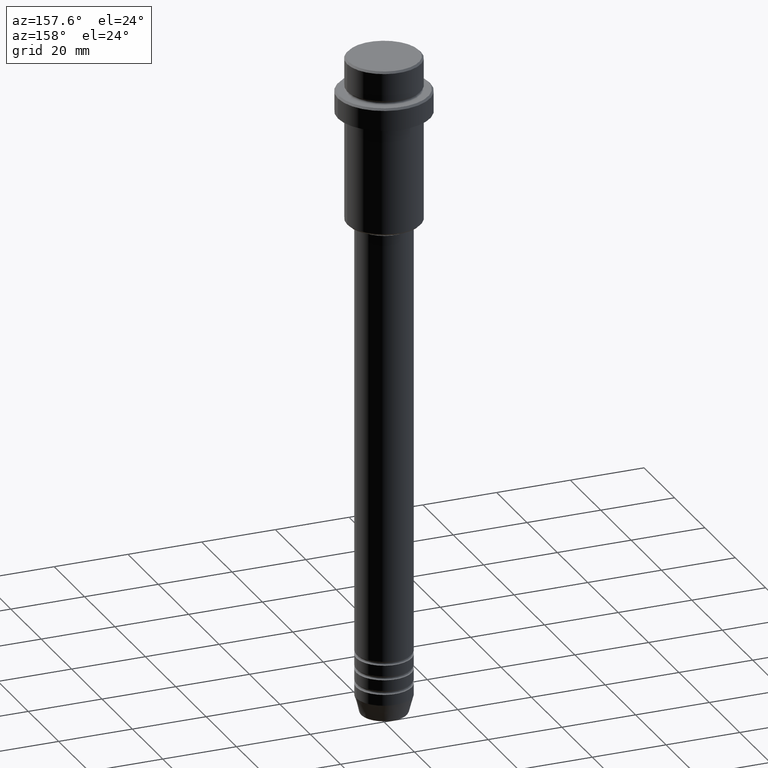
[diagram: clean part render]
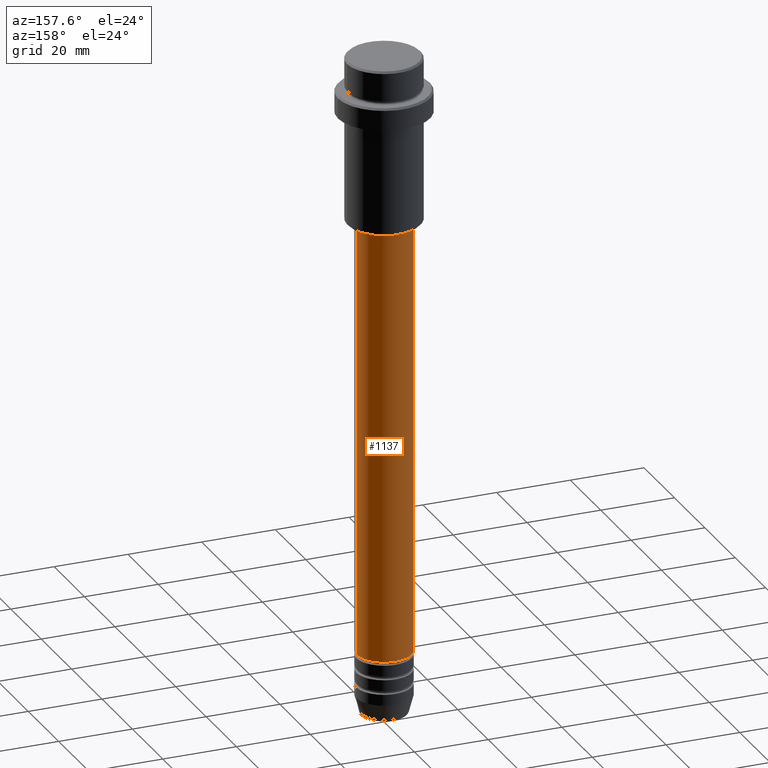
[diagram: same view with one face highlighted and labeled with its STEP entity id]
A machine part, auxiliary view. The second image highlights one B-rep face of the part: STEP entity #1137.
In plain terms, the highlighted cylindrical surface (edge-blend (fillet) strip) has radius 7.5 mm, axis along (-0, -0, 1).
Its self-contained STEP definition (entity closure, byte-faithful):
#1 = EDGE_LOOP ( 'NONE', ( #751, #492, #1362, #136 ) ) ;
#40 = CARTESIAN_POINT ( 'NONE',  ( 0.000000000000000000, 0.000000000000000000, -46.00000000000000711 ) ) ;
#69 = CYLINDRICAL_SURFACE ( 'NONE', #805, 7.500000000000000000 ) ;
#80 = CIRCLE ( 'NONE', #1293, 7.500000000000000000 ) ;
#133 = VERTEX_POINT ( 'NONE', #1253 ) ;
#136 = ORIENTED_EDGE ( 'NONE', *, *, #664, .F. ) ;
#201 = VERTEX_POINT ( 'NONE', #1349 ) ;
#336 = EDGE_CURVE ( 'NONE', #788, #201, #80, .T. ) ;
#346 = VERTEX_POINT ( 'NONE', #1060 ) ;
#354 = CARTESIAN_POINT ( 'NONE',  ( -7.500000000000000000, 9.184850993605147944E-16, 0.000000000000000000 ) ) ;
#386 = DIRECTION ( 'NONE',  ( 1.000000000000000000, 0.000000000000000000, 0.000000000000000000 ) ) ;
#388 = CARTESIAN_POINT ( 'NONE',  ( 7.500000000000000000, 0.000000000000000000, -162.9999999999998863 ) ) ;
#399 = LINE ( 'NONE', #720, #599 ) ;
#492 = ORIENTED_EDGE ( 'NONE', *, *, #1021, .T. ) ;
#500 = DIRECTION ( 'NONE',  ( -0.000000000000000000, -0.000000000000000000, 1.000000000000000000 ) ) ;
#512 = CIRCLE ( 'NONE', #715, 7.500000000000000000 ) ;
#564 = LINE ( 'NONE', #354, #1271 ) ;
#599 = VECTOR ( 'NONE', #630, 1000.000000000000000 ) ;
#630 = DIRECTION ( 'NONE',  ( -0.000000000000000000, -0.000000000000000000, 1.000000000000000000 ) ) ;
#664 = EDGE_CURVE ( 'NONE', #788, #133, #399, .T. ) ;
#684 = DIRECTION ( 'NONE',  ( 1.000000000000000000, 0.000000000000000000, 0.000000000000000000 ) ) ;
#715 = AXIS2_PLACEMENT_3D ( 'NONE', #40, #1352, #684 ) ;
#720 = CARTESIAN_POINT ( 'NONE',  ( 7.500000000000000000, 0.000000000000000000, 0.000000000000000000 ) ) ;
#751 = ORIENTED_EDGE ( 'NONE', *, *, #336, .T. ) ;
#788 = VERTEX_POINT ( 'NONE', #388 ) ;
#805 = AXIS2_PLACEMENT_3D ( 'NONE', #1138, #500, #386 ) ;
#829 = DIRECTION ( 'NONE',  ( 1.000000000000000000, 0.000000000000000000, 0.000000000000000000 ) ) ;
#835 = FACE_OUTER_BOUND ( 'NONE', #1, .T. ) ;
#963 = EDGE_CURVE ( 'NONE', #133, #346, #512, .T. ) ;
#997 = DIRECTION ( 'NONE',  ( -0.000000000000000000, -0.000000000000000000, 1.000000000000000000 ) ) ;
#1021 = EDGE_CURVE ( 'NONE', #201, #346, #564, .T. ) ;
#1051 = DIRECTION ( 'NONE',  ( -0.000000000000000000, -0.000000000000000000, 1.000000000000000000 ) ) ;
#1060 = CARTESIAN_POINT ( 'NONE',  ( -7.500000000000000000, 9.184850993605147944E-16, -46.00000000000000711 ) ) ;
#1137 = ADVANCED_FACE ( 'NONE', ( #835 ), #69, .T. ) ;
#1138 = CARTESIAN_POINT ( 'NONE',  ( 0.000000000000000000, 0.000000000000000000, 0.000000000000000000 ) ) ;
#1253 = CARTESIAN_POINT ( 'NONE',  ( 7.500000000000000000, 0.000000000000000000, -46.00000000000000711 ) ) ;
#1271 = VECTOR ( 'NONE', #997, 1000.000000000000000 ) ;
#1293 = AXIS2_PLACEMENT_3D ( 'NONE', #1374, #1051, #829 ) ;
#1349 = CARTESIAN_POINT ( 'NONE',  ( -7.500000000000000000, 9.184850993605147944E-16, -162.9999999999998863 ) ) ;
#1352 = DIRECTION ( 'NONE',  ( -0.000000000000000000, -0.000000000000000000, 1.000000000000000000 ) ) ;
#1362 = ORIENTED_EDGE ( 'NONE', *, *, #963, .F. ) ;
#1374 = CARTESIAN_POINT ( 'NONE',  ( 0.000000000000000000, 0.000000000000000000, -162.9999999999998863 ) ) ;